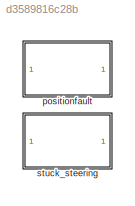
MODEL slx_d3589816c28b
KIND model
CONFIG AbsTol = auto
CONFIG EnableMultiTasking = on
CONFIG FixedStep = auto
CONFIG MaxStep = auto
CONFIG MinStep = auto
CONFIG RelTol = 1e-3
CONFIG SampleTimeConstraint = Unconstrained
CONFIG SolverName = FixedStepAuto
CONFIG StartTime = 0.0
CONFIG StopTime = 30
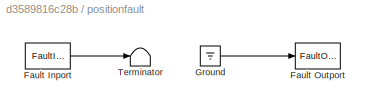
BLOCK [SubSystem] positionfault
  IsInjectorSS = on
  TreatAsAtomicUnit = on
BLOCK [FaultInport] positionfault/Fault Inport
BLOCK [FaultOutport] positionfault/Fault Outport
BLOCK [Ground] positionfault/Ground
BLOCK [Terminator] positionfault/Terminator
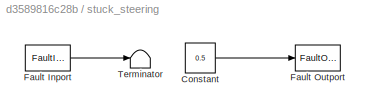
BLOCK [SubSystem] stuck_steering
  IsInjectorSS = on
  TreatAsAtomicUnit = on
BLOCK [Constant] stuck_steering/Constant
  Value = 0.5
BLOCK [FaultInport] stuck_steering/Fault Inport
BLOCK [FaultOutport] stuck_steering/Fault Outport
BLOCK [Terminator] stuck_steering/Terminator
LINE positionfault/Fault Inport:1 -> positionfault/Terminator:1
LINE positionfault/Ground:1 -> positionfault/Fault Outport:1
LINE stuck_steering/Constant:1 -> stuck_steering/Fault Outport:1
LINE stuck_steering/Fault Inport:1 -> stuck_steering/Terminator:1
